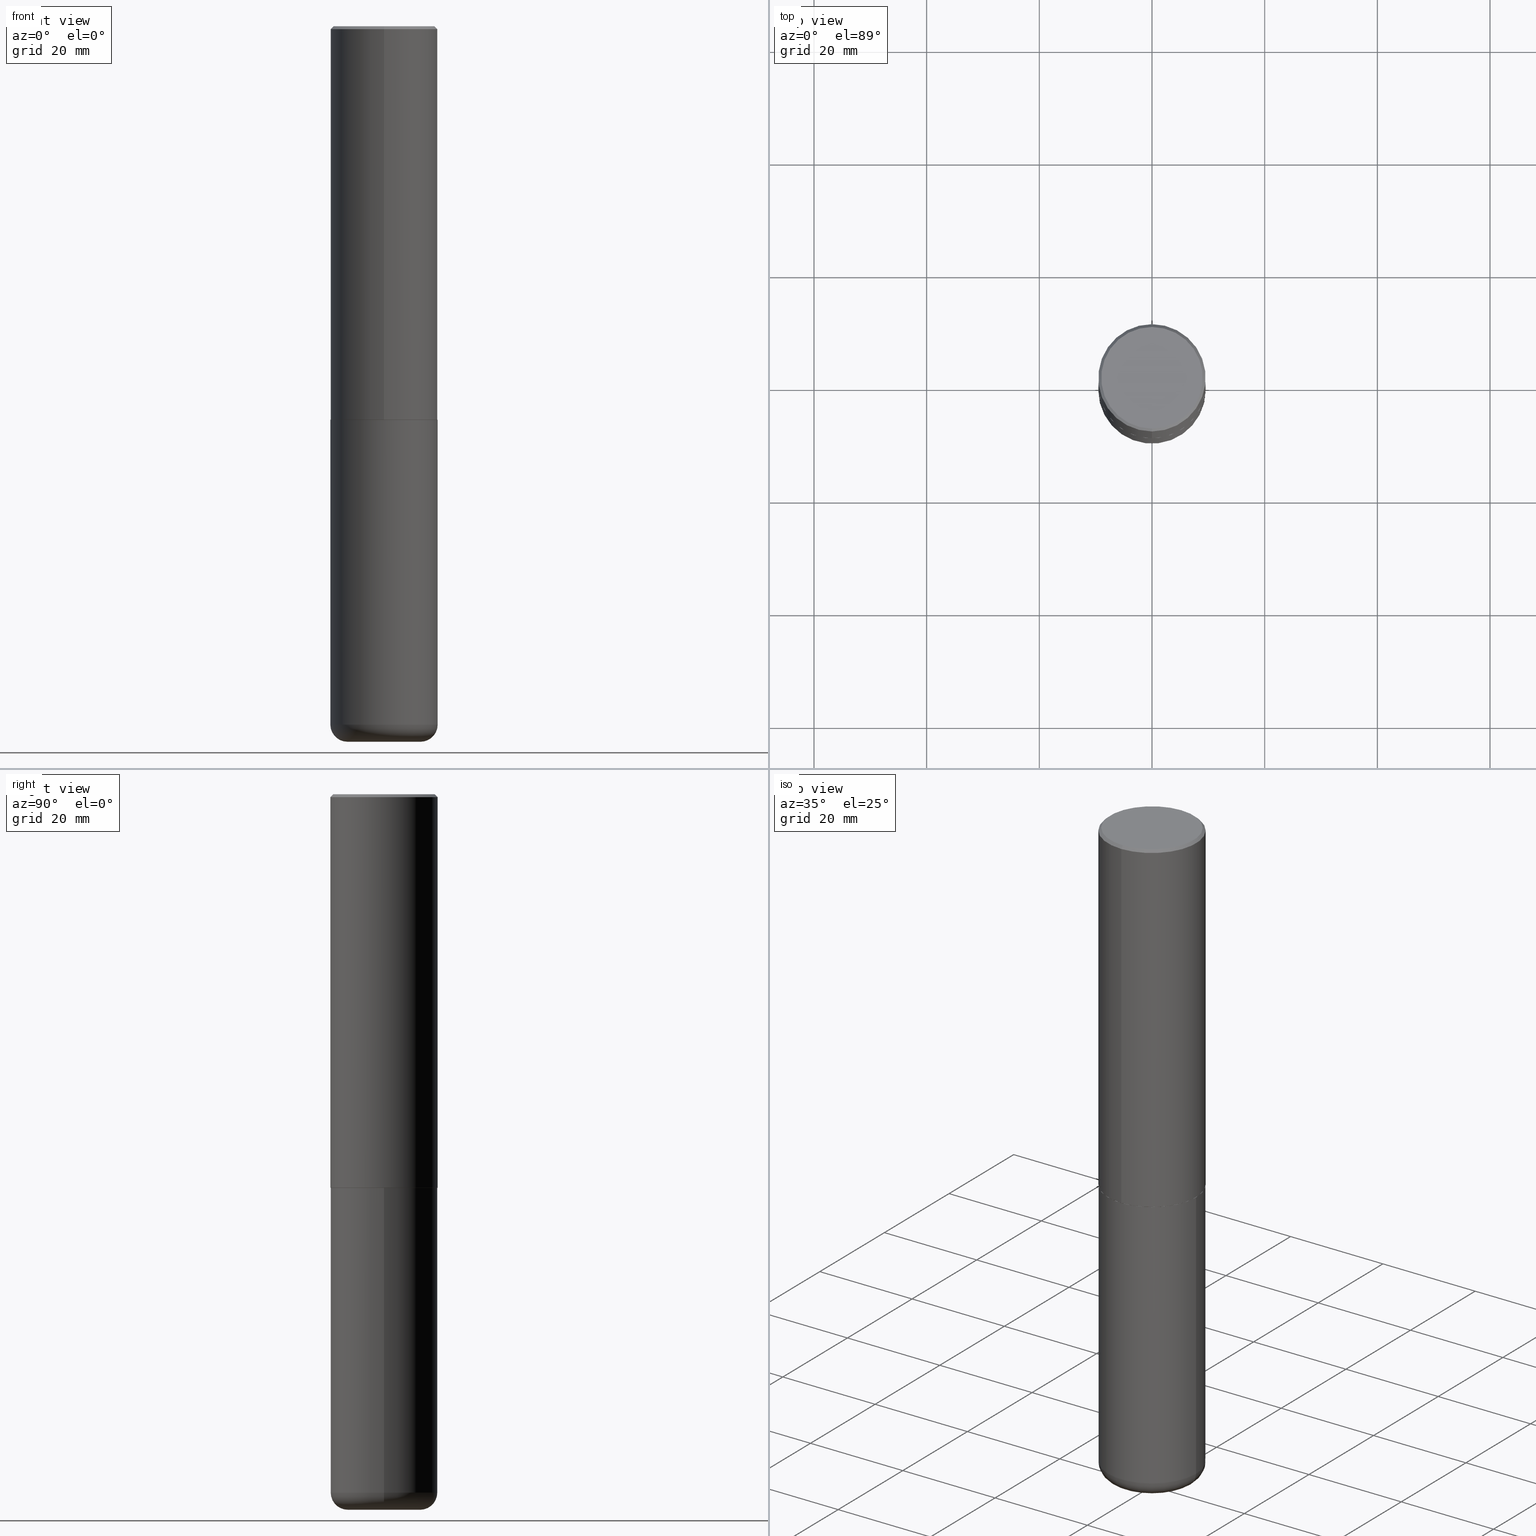
[diagram: canonical four-view strip — front | top / right | iso, engineering-drawing reading convention]
A machine part, canonical four-view strip (front | top / right | iso — engineering-drawing reading convention). The complete STEP part file that produces these views, byte-faithful:
ISO-10303-21;
HEADER;
FILE_DESCRIPTION (( 'STEP AP203' ),
    '1' );
FILE_NAME ('37668.STEP',
    '2024-03-02T07:37:06',
    ( '' ),
    ( '' ),
    'SwSTEP 2.0',
    'SolidWorks 2023',
    '' );
FILE_SCHEMA (( 'CONFIG_CONTROL_DESIGN' ));
ENDSEC;

DATA;
#1 = CARTESIAN_POINT ( 'NONE',  ( -0.3750000000000000555, 2.664535259100376091E-15, -1.844600658845589598E-29 ) ) ;
#2 = EDGE_CURVE ( 'NONE', #78, #285, #305, .T. ) ;
#3 = DIRECTION ( 'NONE',  ( 2.438088387897960049E-29, -3.491481338843145188E-15, -1.000000000000000000 ) ) ;
#4 = DIRECTION ( 'NONE',  ( 1.000000000000000000, -6.982962677686261189E-15, 0.000000000000000000 ) ) ;
#5 = EDGE_CURVE ( 'NONE', #173, #221, #368, .T. ) ;
#6 = ORIENTED_EDGE ( 'NONE', *, *, #258, .F. ) ;
#7 = MECHANICAL_CONTEXT ( 'NONE', #198, 'mechanical' ) ;
#8 = EDGE_LOOP ( 'NONE', ( #370, #292, #10, #160 ) ) ;
#9 = PERSON_AND_ORGANIZATION_ROLE ( 'creator' ) ;
#10 = ORIENTED_EDGE ( 'NONE', *, *, #5, .T. ) ;
#11 = AXIS2_PLACEMENT_3D ( 'NONE', #134, #230, #30 ) ;
#12 = APPROVAL ( #284, 'UNSPECIFIED' ) ;
#13 = ORGANIZATION ( 'UNSPECIFIED', 'UNSPECIFIED', '' ) ;
#14 = APPLICATION_PROTOCOL_DEFINITION ( 'international standard', 'config_control_design', 1994, #198 ) ;
#15 = ORIENTED_EDGE ( 'NONE', *, *, #5, .F. ) ;
#16 = CALENDAR_DATE ( 2024, 2, 3 ) ;
#17 = CARTESIAN_POINT ( 'NONE',  ( 0.3749999999999999445, -1.965703993768690011E-14, -4.880000000000000782 ) ) ;
#18 = FACE_OUTER_BOUND ( 'NONE', #307, .T. ) ;
#19 = EDGE_CURVE ( 'NONE', #238, #78, #337, .T. ) ;
#20 = LOCAL_TIME ( 2, 37, 6.000000000000000000, #396 ) ;
#21 = DIRECTION ( 'NONE',  ( 1.000000000000000000, -6.982962677686265922E-15, 4.876176775795935793E-29 ) ) ;
#22 = DIRECTION ( 'NONE',  ( -6.982962677686265922E-15, -1.000000000000000000, 3.494488891895536035E-15 ) ) ;
#23 = CIRCLE ( 'NONE', #56, 0.1199999999999999539 ) ;
#24 = APPROVAL ( #361, 'UNSPECIFIED' ) ;
#25 = DIRECTION ( 'NONE',  ( -2.445468806185136597E-29, 3.491481338843145583E-15, 1.000000000000000000 ) ) ;
#26 = DIRECTION ( 'NONE',  ( -2.446040391741596606E-29, 3.490662795793665557E-15, 1.000000000000000000 ) ) ;
#27 = ORIENTED_EDGE ( 'NONE', *, *, #19, .F. ) ;
#28 = DIRECTION ( 'NONE',  ( -2.445468806185136597E-29, 3.491481338843145583E-15, 1.000000000000000000 ) ) ;
#29 = CC_DESIGN_PERSON_AND_ORGANIZATION_ASSIGNMENT ( #150, #402, ( #387 ) ) ;
#30 = DIRECTION ( 'NONE',  ( -6.982962677686265922E-15, -1.000000000000000000, 2.913971193241877611E-15 ) ) ;
#31 = DIRECTION ( 'NONE',  ( -2.445468806185136597E-29, 3.491481338843145583E-15, 1.000000000000000000 ) ) ;
#32 = EDGE_CURVE ( 'NONE', #418, #240, #155, .T. ) ;
#33 = DIRECTION ( 'NONE',  ( -2.446040391741596045E-29, 3.490662795793665557E-15, 1.000000000000000000 ) ) ;
#34 = DIRECTION ( 'NONE',  ( 1.000000000000000000, -6.982962677686270655E-15, 0.000000000000000000 ) ) ;
#35 = VECTOR ( 'NONE', #262, 39.37007874015748143 ) ;
#36 =( NAMED_UNIT ( * ) SI_UNIT ( $, .STERADIAN. ) SOLID_ANGLE_UNIT ( ) );
#37 = EDGE_LOOP ( 'NONE', ( #313, #39, #43, #6 ) ) ;
#38 = PERSON_AND_ORGANIZATION ( #60, #13 ) ;
#39 = ORIENTED_EDGE ( 'NONE', *, *, #200, .T. ) ;
#40 = ORIENTED_EDGE ( 'NONE', *, *, #290, .F. ) ;
#41 = VECTOR ( 'NONE', #404, 39.37007874015748143 ) ;
#42 = ORIENTED_EDGE ( 'NONE', *, *, #32, .T. ) ;
#43 = ORIENTED_EDGE ( 'NONE', *, *, #403, .T. ) ;
#44 = DESIGN_CONTEXT ( 'detailed design', #302, 'design' ) ;
#45 = AXIS2_PLACEMENT_3D ( 'NONE', #124, #312, #58 ) ;
#46 = ADVANCED_FACE ( 'NONE', ( #125 ), #345, .F. ) ;
#47 = PERSON_AND_ORGANIZATION ( #60, #13 ) ;
#48 = CIRCLE ( 'NONE', #159, 0.3750000000000000555 ) ;
#49 = EDGE_LOOP ( 'NONE', ( #137, #172, #176, #326 ) ) ;
#50 = MANIFOLD_SOLID_BREP ( 'Body-Move/Copy2[2]', #410 ) ;
#51 = CARTESIAN_POINT ( 'NONE',  ( 0.000000000000000000, 0.000000000000000000, 0.000000000000000000 ) ) ;
#52 = AXIS2_PLACEMENT_3D ( 'NONE', #279, #157, #347 ) ;
#53 = EDGE_CURVE ( 'NONE', #173, #209, #83, .T. ) ;
#54 = DIRECTION ( 'NONE',  ( 2.446040391741596606E-29, -3.490662795793665557E-15, -1.000000000000000000 ) ) ;
#55 = DIRECTION ( 'NONE',  ( 6.982962677686265922E-15, 1.000000000000000000, -3.494488891895536035E-15 ) ) ;
#56 = AXIS2_PLACEMENT_3D ( 'NONE', #289, #358, #226 ) ;
#57 = AXIS2_PLACEMENT_3D ( 'NONE', #388, #237, #299 ) ;
#58 = DIRECTION ( 'NONE',  ( 1.000000000000000000, -6.982962677686266711E-15, 0.000000000000000000 ) ) ;
#59 = PRODUCT_DEFINITION_FORMATION_WITH_SPECIFIED_SOURCE ( 'ANY', '', #295, .NOT_KNOWN. ) ;
#60 = PERSON ( 'UNSPECIFIED', 'UNSPECIFIED', 'UNSPECIFIED', ('UNSPECIFIED'), ('UNSPECIFIED'), ('UNSPECIFIED') ) ;
#61 = DIRECTION ( 'NONE',  ( -6.982962677686266711E-15, -1.000000000000000000, 2.921762560068730595E-15 ) ) ;
#62 = AXIS2_PLACEMENT_3D ( 'NONE', #380, #247, #96 ) ;
#63 = ADVANCED_FACE ( 'NONE', ( #18 ), #408, .T. ) ;
#64 = DIRECTION ( 'NONE',  ( -2.446040391741596606E-29, 3.490662795793665557E-15, 1.000000000000000000 ) ) ;
#65 = VECTOR ( 'NONE', #296, 39.37007874015748143 ) ;
#66 = CARTESIAN_POINT ( 'NONE',  ( -0.3750000000000000555, -1.065546604858622507E-14, -2.750000000000000000 ) ) ;
#67 = LOCAL_TIME ( 2, 37, 6.000000000000000000, #147 ) ;
#68 = ORIENTED_EDGE ( 'NONE', *, *, #280, .F. ) ;
#69 = DIRECTION ( 'NONE',  ( 1.000000000000000000, -6.982962677686266711E-15, 0.000000000000000000 ) ) ;
#70 = DIRECTION ( 'NONE',  ( -1.000000000000000000, 6.982962677686265922E-15, -4.876176775795935793E-29 ) ) ;
#71 = ORIENTED_EDGE ( 'NONE', *, *, #205, .T. ) ;
#72 = CARTESIAN_POINT ( 'NONE',  ( -0.3749999999999999445, -1.437389367445417440E-14, -4.880000000000000782 ) ) ;
#73 = TOROIDAL_SURFACE ( 'NONE', #62, 0.2550000000000000044, 0.1199999999999999123 ) ;
#74 = DIRECTION ( 'NONE',  ( -6.982962677686265922E-15, -1.000000000000000000, 2.913971193241877611E-15 ) ) ;
#75 = CARTESIAN_POINT ( 'NONE',  ( 6.724165036897648492E-29, -9.595832025636787455E-15, -2.749000000000000110 ) ) ;
#76 = AXIS2_PLACEMENT_3D ( 'NONE', #383, #28, #384 ) ;
#77 = APPROVAL_DATE_TIME ( #363, #24 ) ;
#78 = VERTEX_POINT ( 'NONE', #17 ) ;
#79 = LINE ( 'NONE', #241, #65 ) ;
#80 = ADVANCED_FACE ( 'NONE', ( #220 ), #401, .T. ) ;
#81 = ORIENTED_EDGE ( 'NONE', *, *, #310, .T. ) ;
#82 = ORIENTED_EDGE ( 'NONE', *, *, #310, .F. ) ;
#83 = CIRCLE ( 'NONE', #203, 0.3739999999999999991 ) ;
#84 =( NAMED_UNIT ( * ) PLANE_ANGLE_UNIT ( ) SI_UNIT ( $, .RADIAN. ) );
#85 = CARTESIAN_POINT ( 'NONE',  ( -2.611628041454596160E-15, -0.3740000000000096581, -2.749999999999998668 ) ) ;
#86 = SECURITY_CLASSIFICATION_LEVEL ( 'unclassified' ) ;
#87 = AXIS2_PLACEMENT_3D ( 'NONE', #51, #294, #228 ) ;
#88 = FACE_OUTER_BOUND ( 'NONE', #37, .T. ) ;
#89 = ADVANCED_FACE ( 'NONE', ( #405 ), #73, .T. ) ;
#90 = CARTESIAN_POINT ( 'NONE',  ( -2.572686749164323547E-15, -0.3750000000000001110, -0.01999999999999877570 ) ) ;
#91 = ORIENTED_EDGE ( 'NONE', *, *, #280, .T. ) ;
#92 = PERSON_AND_ORGANIZATION ( #60, #13 ) ;
#93 = DIRECTION ( 'NONE',  ( -2.445468806185136597E-29, 3.491481338843145583E-15, 1.000000000000000000 ) ) ;
#94 = CIRCLE ( 'NONE', #353, 0.2550000000000000044 ) ;
#95 = VERTEX_POINT ( 'NONE', #152 ) ;
#96 = DIRECTION ( 'NONE',  ( 1.000000000000000000, -6.982962677686263555E-15, 4.883557194083111219E-29 ) ) ;
#97 = EDGE_CURVE ( 'NONE', #95, #418, #374, .T. ) ;
#98 = CLOSED_SHELL ( 'NONE', ( #63, #89, #264, #188, #102, #390 ) ) ;
#99 = CARTESIAN_POINT ( 'NONE',  ( 1.222734403092568523E-28, -1.745740669421572989E-14, -5.000000000000000000 ) ) ;
#100 = CONICAL_SURFACE ( 'NONE', #256, 0.3750000000000000555, 0.7853981633974465026 ) ;
#101 = DIRECTION ( 'NONE',  ( -6.982962677686266711E-15, -1.000000000000000000, 2.921762560068730595E-15 ) ) ;
#102 = ADVANCED_FACE ( 'NONE', ( #217 ), #130, .T. ) ;
#103 = CARTESIAN_POINT ( 'NONE',  ( -1.141397163745304909E-45, 1.628849886601155835E-31, 4.666305460853910467E-17 ) ) ;
#104 = DIRECTION ( 'NONE',  ( -2.446040391741596606E-29, 3.490662795793665557E-15, 1.000000000000000000 ) ) ;
#105 = AXIS2_PLACEMENT_3D ( 'NONE', #245, #331, #34 ) ;
#106 = FACE_OUTER_BOUND ( 'NONE', #49, .T. ) ;
#107 = AXIS2_PLACEMENT_3D ( 'NONE', #132, #3, #70 ) ;
#108 = PERSON_AND_ORGANIZATION ( #60, #13 ) ;
#109 = PRODUCT_RELATED_PRODUCT_CATEGORY ( 'detail', '', ( #295 ) ) ;
#110 = EDGE_LOOP ( 'NONE', ( #277, #145, #298, #27 ) ) ;
#111 = ADVANCED_FACE ( 'NONE', ( #283 ), #100, .T. ) ;
#112 = CIRCLE ( 'NONE', #151, 0.3750000000000003886 ) ;
#113 = DIRECTION ( 'NONE',  ( 2.438088387897960049E-29, -3.491481338843145188E-15, -1.000000000000000000 ) ) ;
#114 = AXIS2_PLACEMENT_3D ( 'NONE', #276, #33, #138 ) ;
#115 = ORIENTED_EDGE ( 'NONE', *, *, #2, .F. ) ;
#116 = PLANE ( 'NONE',  #114 ) ;
#117 = DIRECTION ( 'NONE',  ( -2.445468806185136877E-29, 3.491481338843145188E-15, 1.000000000000000000 ) ) ;
#118 = PERSON_AND_ORGANIZATION ( #60, #13 ) ;
#119 = EDGE_LOOP ( 'NONE', ( #398, #340, #91, #270 ) ) ;
#120 = EDGE_CURVE ( 'NONE', #95, #272, #341, .T. ) ;
#121 = DIRECTION ( 'NONE',  ( -2.445468806185136597E-29, 3.491481338843145583E-15, 1.000000000000000000 ) ) ;
#122 = APPROVAL_DATE_TIME ( #183, #12 ) ;
#123 = DIRECTION ( 'NONE',  ( -2.446040391741596606E-29, 3.490662795793665557E-15, 1.000000000000000000 ) ) ;
#124 = CARTESIAN_POINT ( 'NONE',  ( 6.725039217009124520E-29, -9.601573681818649859E-15, -2.750000000000000000 ) ) ;
#125 = FACE_OUTER_BOUND ( 'NONE', #364, .T. ) ;
#126 = AXIS2_PLACEMENT_3D ( 'NONE', #163, #225, #354 ) ;
#127 = CYLINDRICAL_SURFACE ( 'NONE', #357, 0.3750000000000000555 ) ;
#128 = VECTOR ( 'NONE', #223, 39.37007874015748143 ) ;
#129 = EDGE_CURVE ( 'NONE', #209, #392, #351, .T. ) ;
#130 = TOROIDAL_SURFACE ( 'NONE', #385, 0.2550000000000000044, 0.1199999999999999123 ) ;
#131 = CARTESIAN_POINT ( 'NONE',  ( 0.2550000000000000044, -1.923806217702572663E-14, -5.000000000000000000 ) ) ;
#132 = CARTESIAN_POINT ( 'NONE',  ( 6.725039217009124520E-29, -9.601573681818649859E-15, -2.750000000000000000 ) ) ;
#133 = CARTESIAN_POINT ( 'NONE',  ( 2.548781377355487113E-15, 0.3549999999999999822, -1.192522237898212341E-15 ) ) ;
#134 = CARTESIAN_POINT ( 'NONE',  ( 6.724165036897648492E-29, -9.595832025636787455E-15, -2.749000000000000110 ) ) ;
#135 = APPROVAL ( #309, 'UNSPECIFIED' ) ;
#136 = CIRCLE ( 'NONE', #246, 0.3750000000000000555 ) ;
#137 = ORIENTED_EDGE ( 'NONE', *, *, #275, .F. ) ;
#138 = DIRECTION ( 'NONE',  ( -6.982962677686265922E-15, -1.000000000000000000, 3.490662795793665557E-15 ) ) ;
#139 = ORIENTED_EDGE ( 'NONE', *, *, #53, .F. ) ;
#140 = DIRECTION ( 'NONE',  ( 1.000000000000000000, 0.000000000000000000, 0.000000000000000000 ) ) ;
#141 = AXIS2_PLACEMENT_3D ( 'NONE', #389, #25, #4 ) ;
#142 = CARTESIAN_POINT ( 'NONE',  ( 0.000000000000000000, 0.000000000000000000, 0.000000000000000000 ) ) ;
#143 = ORIENTED_EDGE ( 'NONE', *, *, #53, .T. ) ;
#144 = DATE_TIME_ROLE ( 'classification_date' ) ;
#145 = ORIENTED_EDGE ( 'NONE', *, *, #181, .T. ) ;
#146 = AXIS2_PLACEMENT_3D ( 'NONE', #311, #282, #251 ) ;
#147 = COORDINATED_UNIVERSAL_TIME_OFFSET ( 5, 0, .BEHIND. ) ;
#148 = ADVANCED_FACE ( 'NONE', ( #411 ), #260, .T. ) ;
#149 = CONICAL_SURFACE ( 'NONE', #314, 0.3739999999999999991, 0.7853981633977213939 ) ;
#150 = PERSON_AND_ORGANIZATION ( #60, #13 ) ;
#151 = AXIS2_PLACEMENT_3D ( 'NONE', #75, #394, #74 ) ;
#152 = CARTESIAN_POINT ( 'NONE',  ( -2.504081769186608216E-15, -0.3549999999999999822, 1.285848347115290366E-15 ) ) ;
#153 = APPROVAL_PERSON_ORGANIZATION ( #47, #24, #212 ) ;
#154 = DIRECTION ( 'NONE',  ( 5.024295867789434219E-15, 0.7071067811867430830, 0.7071067811863519514 ) ) ;
#155 = CIRCLE ( 'NONE', #330, 0.3750000000000000555 ) ;
#156 = DATE_TIME_ROLE ( 'creation_date' ) ;
#157 = DIRECTION ( 'NONE',  ( -2.446040391741596606E-29, 3.490662795793665557E-15, 1.000000000000000000 ) ) ;
#158 = DIRECTION ( 'NONE',  ( -2.446040391741596606E-29, 3.490662795793665557E-15, 1.000000000000000000 ) ) ;
#159 = AXIS2_PLACEMENT_3D ( 'NONE', #193, #64, #194 ) ;
#160 = ORIENTED_EDGE ( 'NONE', *, *, #200, .F. ) ;
#161 = LOCAL_TIME ( 2, 37, 6.000000000000000000, #191 ) ;
#162 = PLANE ( 'NONE',  #107 ) ;
#163 = CARTESIAN_POINT ( 'NONE',  ( 1.222734403092568523E-28, -1.745740669421572989E-14, -5.000000000000000000 ) ) ;
#164 = EDGE_LOOP ( 'NONE', ( #170, #81, #301, #174 ) ) ;
#165 = CARTESIAN_POINT ( 'NONE',  ( -2.618611004132284935E-15, -0.3750000000000099920, -2.748999999999999222 ) ) ;
#166 = CARTESIAN_POINT ( 'NONE',  ( 2.660982545421643429E-15, 0.3739999999999903957, -2.750000000000000888 ) ) ;
#167 = EDGE_CURVE ( 'NONE', #214, #285, #381, .T. ) ;
#168 = DIRECTION ( 'NONE',  ( -6.982962677686265922E-15, -1.000000000000000000, 3.490662795793665557E-15 ) ) ;
#169 = CARTESIAN_POINT ( 'NONE',  ( 2.664535259100411196E-15, 0.3749999999999907296, -2.749000000000000998 ) ) ;
#170 = ORIENTED_EDGE ( 'NONE', *, *, #181, .F. ) ;
#171 = ADVANCED_FACE ( 'NONE', ( #88 ), #216, .T. ) ;
#172 = ORIENTED_EDGE ( 'NONE', *, *, #192, .T. ) ;
#173 = VERTEX_POINT ( 'NONE', #199 ) ;
#174 = ORIENTED_EDGE ( 'NONE', *, *, #192, .F. ) ;
#175 = FACE_OUTER_BOUND ( 'NONE', #278, .T. ) ;
#176 = ORIENTED_EDGE ( 'NONE', *, *, #2, .T. ) ;
#177 = CIRCLE ( 'NONE', #231, 0.3739999999999999991 ) ;
#178 = VECTOR ( 'NONE', #269, 39.37007874015748143 ) ;
#179 = CARTESIAN_POINT ( 'NONE',  ( -0.2550000000000000044, -1.500970819624082478E-14, -5.000000000000000000 ) ) ;
#180 = ORIENTED_EDGE ( 'NONE', *, *, #393, .T. ) ;
#181 = EDGE_CURVE ( 'NONE', #366, #213, #23, .T. ) ;
#182 = CARTESIAN_POINT ( 'NONE',  ( 0.000000000000000000, 0.000000000000000000, 0.000000000000000000 ) ) ;
#183 = DATE_AND_TIME ( #375, #161 ) ;
#184 = DIRECTION ( 'NONE',  ( 2.446040391741596606E-29, -3.490662795793665557E-15, -1.000000000000000000 ) ) ;
#185 = APPROVAL_ROLE ( '' ) ;
#186 = CARTESIAN_POINT ( 'NONE',  ( -1.141397163745304909E-45, 1.628849886601155835E-31, 4.666305460853910467E-17 ) ) ;
#187 =( GEOMETRIC_REPRESENTATION_CONTEXT ( 3 ) GLOBAL_UNCERTAINTY_ASSIGNED_CONTEXT ( ( #268 ) ) GLOBAL_UNIT_ASSIGNED_CONTEXT ( ( #339, #84, #36 ) ) REPRESENTATION_CONTEXT ( 'NONE', 'WORKASPACE' ) );
#188 = ADVANCED_FACE ( 'NONE', ( #106 ), #127, .T. ) ;
#189 = DIRECTION ( 'NONE',  ( -6.982962677686265922E-15, -1.000000000000000000, 3.490662795793665557E-15 ) ) ;
#190 = ORIENTED_EDGE ( 'NONE', *, *, #120, .F. ) ;
#191 = COORDINATED_UNIVERSAL_TIME_OFFSET ( 5, 0, .BEHIND. ) ;
#192 = EDGE_CURVE ( 'NONE', #213, #78, #397, .T. ) ;
#193 = CARTESIAN_POINT ( 'NONE',  ( 4.892080783483214581E-31, -6.981325591587361238E-17, -0.02000000000000008715 ) ) ;
#194 = DIRECTION ( 'NONE',  ( -6.982962677686265922E-15, -1.000000000000000000, 3.494488891895536035E-15 ) ) ;
#195 = DIRECTION ( 'NONE',  ( 1.000000000000000000, -6.982962677686267499E-15, 0.000000000000000000 ) ) ;
#196 = ORIENTED_EDGE ( 'NONE', *, *, #362, .F. ) ;
#197 = ORIENTED_EDGE ( 'NONE', *, *, #97, .T. ) ;
#198 = APPLICATION_CONTEXT ( 'configuration controlled 3d designs of mechanical parts and assemblies' ) ;
#199 = CARTESIAN_POINT ( 'NONE',  ( -2.611628041454596160E-15, -0.3740000000000096581, -2.749999999999998668 ) ) ;
#200 = EDGE_CURVE ( 'NONE', #392, #221, #219, .T. ) ;
#201 = CARTESIAN_POINT ( 'NONE',  ( 0.000000000000000000, 0.000000000000000000, 0.000000000000000000 ) ) ;
#202 = LENGTH_MEASURE_WITH_UNIT ( LENGTH_MEASURE( 0.02539999999999999897 ), #399 );
#203 = AXIS2_PLACEMENT_3D ( 'NONE', #250, #123, #61 ) ;
#204 = ORIENTED_EDGE ( 'NONE', *, *, #242, .F. ) ;
#205 = EDGE_CURVE ( 'NONE', #78, #213, #273, .T. ) ;
#206 = DIRECTION ( 'NONE',  ( -1.000000000000000000, 6.982962677686265922E-15, -4.876176775795935793E-29 ) ) ;
#207 = ORIENTED_EDGE ( 'NONE', *, *, #120, .T. ) ;
#208 = CARTESIAN_POINT ( 'NONE',  ( -2.572686749164323547E-15, -0.3750000000000001110, -0.01999999999999877570 ) ) ;
#209 = VERTEX_POINT ( 'NONE', #166 ) ;
#210 = DIMENSIONAL_EXPONENTS ( 1.000000000000000000, 0.000000000000000000, 0.000000000000000000, 0.000000000000000000, 0.000000000000000000, 0.000000000000000000, 0.000000000000000000 ) ;
#211 = ORIENTED_EDGE ( 'NONE', *, *, #362, .T. ) ;
#212 = APPROVAL_ROLE ( '' ) ;
#213 = VERTEX_POINT ( 'NONE', #72 ) ;
#214 = VERTEX_POINT ( 'NONE', #66 ) ;
#215 = PERSON_AND_ORGANIZATION ( #60, #13 ) ;
#216 = CYLINDRICAL_SURFACE ( 'NONE', #87, 0.3750000000000002220 ) ;
#217 = FACE_OUTER_BOUND ( 'NONE', #164, .T. ) ;
#218 = CC_DESIGN_PERSON_AND_ORGANIZATION_ASSIGNMENT ( #38, #9, ( #329 ) ) ;
#219 = CIRCLE ( 'NONE', #11, 0.3750000000000003886 ) ;
#220 = FACE_OUTER_BOUND ( 'NONE', #8, .T. ) ;
#221 = VERTEX_POINT ( 'NONE', #165 ) ;
#222 = CC_DESIGN_APPROVAL ( #135, ( #387 ) ) ;
#223 = DIRECTION ( 'NONE',  ( -4.851104656540954809E-15, -0.7071067811865486830, -0.7071067811865463515 ) ) ;
#224 = FACE_OUTER_BOUND ( 'NONE', #367, .T. ) ;
#225 = DIRECTION ( 'NONE',  ( -2.445468806185136597E-29, 3.491481338843145583E-15, 1.000000000000000000 ) ) ;
#226 = DIRECTION ( 'NONE',  ( -1.000000000000000000, 7.105427357600993970E-15, 0.000000000000000000 ) ) ;
#227 = VECTOR ( 'NONE', #117, 39.37007874015748143 ) ;
#228 = DIRECTION ( 'NONE',  ( -6.982962677686266711E-15, -1.000000000000000000, 3.490662795793665951E-15 ) ) ;
#229 = ORIENTED_EDGE ( 'NONE', *, *, #275, .T. ) ;
#230 = DIRECTION ( 'NONE',  ( -2.446040391741596606E-29, 3.490662795793665557E-15, 1.000000000000000000 ) ) ;
#231 = AXIS2_PLACEMENT_3D ( 'NONE', #352, #104, #257 ) ;
#232 = AXIS2_PLACEMENT_3D ( 'NONE', #252, #184, #319 ) ;
#233 = EDGE_CURVE ( 'NONE', #238, #366, #94, .T. ) ;
#234 = EDGE_LOOP ( 'NONE', ( #338, #82 ) ) ;
#235 = PERSON_AND_ORGANIZATION_ROLE ( 'design_owner' ) ;
#236 = ORIENTED_EDGE ( 'NONE', *, *, #286, .T. ) ;
#237 = DIRECTION ( 'NONE',  ( -2.446040391741596606E-29, 3.490662795793665557E-15, 1.000000000000000000 ) ) ;
#238 = VERTEX_POINT ( 'NONE', #131 ) ;
#239 = ADVANCED_BREP_SHAPE_REPRESENTATION ( '37668', ( #332, #50, #415 ), #187 ) ;
#240 = VERTEX_POINT ( 'NONE', #356 ) ;
#241 = CARTESIAN_POINT ( 'NONE',  ( 2.664535259100376880E-15, 0.3750000000000002220, -1.308998548422625521E-15 ) ) ;
#242 = EDGE_CURVE ( 'NONE', #209, #173, #177, .T. ) ;
#243 = EDGE_LOOP ( 'NONE', ( #190, #197, #42, #68 ) ) ;
#244 = PERSON_AND_ORGANIZATION ( #60, #13 ) ;
#245 = CARTESIAN_POINT ( 'NONE',  ( 0.2550000000000000044, -1.881908441636454685E-14, -4.880000000000000782 ) ) ;
#246 = AXIS2_PLACEMENT_3D ( 'NONE', #355, #31, #69 ) ;
#247 = DIRECTION ( 'NONE',  ( -2.445468806185136597E-29, 3.491481338843145583E-15, 1.000000000000000000 ) ) ;
#248 = APPROVAL_PERSON_ORGANIZATION ( #118, #12, #412 ) ;
#249 = DATE_AND_TIME ( #16, #308 ) ;
#250 = CARTESIAN_POINT ( 'NONE',  ( 6.726611077289389265E-29, -9.599322688432580971E-15, -2.750000000000000000 ) ) ;
#251 = DIRECTION ( 'NONE',  ( 6.982962677686265922E-15, 1.000000000000000000, -3.490662795793665557E-15 ) ) ;
#252 = CARTESIAN_POINT ( 'NONE',  ( 4.892080783483214581E-31, -6.981325591587361238E-17, -0.02000000000000008715 ) ) ;
#253 = CC_DESIGN_PERSON_AND_ORGANIZATION_ASSIGNMENT ( #244, #350, ( #59 ) ) ;
#254 = AXIS2_PLACEMENT_3D ( 'NONE', #182, #121, #21 ) ;
#255 = DIRECTION ( 'NONE',  ( -2.446040391741596606E-29, 3.490662795793665557E-15, 1.000000000000000000 ) ) ;
#256 = AXIS2_PLACEMENT_3D ( 'NONE', #287, #54, #55 ) ;
#257 = DIRECTION ( 'NONE',  ( -6.982962677686266711E-15, -1.000000000000000000, 2.921762560068730595E-15 ) ) ;
#258 = EDGE_CURVE ( 'NONE', #240, #418, #48, .T. ) ;
#259 = APPROVAL_PERSON_ORGANIZATION ( #92, #135, #185 ) ;
#260 = CONICAL_SURFACE ( 'NONE', #232, 0.3750000000000000555, 0.7853981633974465026 ) ;
#261 = FACE_OUTER_BOUND ( 'NONE', #406, .T. ) ;
#262 = DIRECTION ( 'NONE',  ( 4.937700262164538576E-15, 0.7071067811865437980, -0.7071067811865512365 ) ) ;
#263 = APPLICATION_PROTOCOL_DEFINITION ( 'international standard', 'config_control_design', 1994, #302 ) ;
#264 = ADVANCED_FACE ( 'NONE', ( #224 ), #162, .F. ) ;
#265 = DIRECTION ( 'NONE',  ( 0.000000000000000000, 0.000000000000000000, 1.000000000000000000 ) ) ;
#266 = LOCAL_TIME ( 2, 37, 6.000000000000000000, #271 ) ;
#267 = ORIENTED_EDGE ( 'NONE', *, *, #167, .T. ) ;
#268 = UNCERTAINTY_MEASURE_WITH_UNIT (LENGTH_MEASURE( 1.000000000000000082E-05 ), #339, 'distance_accuracy_value', 'NONE');
#269 = DIRECTION ( 'NONE',  ( -2.446040391741596606E-29, 3.490662795793665557E-15, 1.000000000000000000 ) ) ;
#270 = ORIENTED_EDGE ( 'NONE', *, *, #258, .T. ) ;
#271 = COORDINATED_UNIVERSAL_TIME_OFFSET ( 5, 0, .BEHIND. ) ;
#272 = VERTEX_POINT ( 'NONE', #133 ) ;
#273 = CIRCLE ( 'NONE', #76, 0.3750000000000000555 ) ;
#274 = AXIS2_PLACEMENT_3D ( 'NONE', #186, #315, #189 ) ;
#275 = EDGE_CURVE ( 'NONE', #213, #214, #291, .T. ) ;
#276 = CARTESIAN_POINT ( 'NONE',  ( 6.726611077289389265E-29, -9.599322688432580971E-15, -2.750000000000000000 ) ) ;
#277 = ORIENTED_EDGE ( 'NONE', *, *, #233, .T. ) ;
#278 = EDGE_LOOP ( 'NONE', ( #139, #204 ) ) ;
#279 = CARTESIAN_POINT ( 'NONE',  ( 6.726611077289389265E-29, -9.599322688432580971E-15, -2.750000000000000000 ) ) ;
#280 = EDGE_CURVE ( 'NONE', #272, #240, #293, .T. ) ;
#281 = DATE_AND_TIME ( #379, #67 ) ;
#282 = DIRECTION ( 'NONE',  ( 2.446040391741596045E-29, -3.490662795793665557E-15, -1.000000000000000000 ) ) ;
#283 = FACE_OUTER_BOUND ( 'NONE', #119, .T. ) ;
#284 = APPROVAL_STATUS ( 'not_yet_approved' ) ;
#285 = VERTEX_POINT ( 'NONE', #328 ) ;
#286 = EDGE_CURVE ( 'NONE', #272, #95, #320, .T. ) ;
#287 = CARTESIAN_POINT ( 'NONE',  ( 4.892080783483214581E-31, -6.981325591587361238E-17, -0.02000000000000008715 ) ) ;
#288 = CARTESIAN_POINT ( 'NONE',  ( 2.618611004132350411E-15, 0.3749999999999999445, -0.02000000000000139513 ) ) ;
#289 = CARTESIAN_POINT ( 'NONE',  ( -0.2550000000000000044, -1.522654495736629538E-14, -4.880000000000000782 ) ) ;
#290 = EDGE_CURVE ( 'NONE', #285, #214, #136, .T. ) ;
#291 = LINE ( 'NONE', #1, #342 ) ;
#292 = ORIENTED_EDGE ( 'NONE', *, *, #242, .T. ) ;
#293 = LINE ( 'NONE', #288, #35 ) ;
#294 = DIRECTION ( 'NONE',  ( -2.446040391741596606E-29, 3.490662795793665557E-15, 1.000000000000000000 ) ) ;
#295 = PRODUCT ( '37668', '37668', '', ( #7 ) ) ;
#296 = DIRECTION ( 'NONE',  ( -2.446040391741596606E-29, 3.490662795793665557E-15, 1.000000000000000000 ) ) ;
#297 = ADVANCED_FACE ( 'NONE', ( #261 ), #149, .T. ) ;
#298 = ORIENTED_EDGE ( 'NONE', *, *, #205, .F. ) ;
#299 = DIRECTION ( 'NONE',  ( -6.982962677686266711E-15, -1.000000000000000000, 3.490662795793665951E-15 ) ) ;
#300 = CC_DESIGN_APPROVAL ( #24, ( #329 ) ) ;
#301 = ORIENTED_EDGE ( 'NONE', *, *, #19, .T. ) ;
#302 = APPLICATION_CONTEXT ( 'configuration controlled 3d designs of mechanical parts and assemblies' ) ;
#303 = CARTESIAN_POINT ( 'NONE',  ( -2.618611004132351594E-15, -0.3750000000000002220, 1.308998548422625521E-15 ) ) ;
#304 = PRODUCT_DEFINITION_SHAPE ( 'NONE', 'NONE',  #329 ) ;
#305 = LINE ( 'NONE', #400, #227 ) ;
#306 = CARTESIAN_POINT ( 'NONE',  ( 1.222734403092568523E-28, -1.745740669421572989E-14, -5.000000000000000000 ) ) ;
#307 = EDGE_LOOP ( 'NONE', ( #71, #229, #40, #115 ) ) ;
#308 = LOCAL_TIME ( 2, 37, 6.000000000000000000, #318 ) ;
#309 = APPROVAL_STATUS ( 'not_yet_approved' ) ;
#310 = EDGE_CURVE ( 'NONE', #366, #238, #333, .T. ) ;
#311 = CARTESIAN_POINT ( 'NONE',  ( 2.478951750578624209E-15, 0.3549999999999999822, -1.215853765202481601E-15 ) ) ;
#312 = DIRECTION ( 'NONE',  ( -2.445468806185136597E-29, 3.491481338843145583E-15, 1.000000000000000000 ) ) ;
#313 = ORIENTED_EDGE ( 'NONE', *, *, #393, .F. ) ;
#314 = AXIS2_PLACEMENT_3D ( 'NONE', #416, #255, #101 ) ;
#315 = DIRECTION ( 'NONE',  ( -2.446040391741596606E-29, 3.490662795793665557E-15, 1.000000000000000000 ) ) ;
#316 = CC_DESIGN_SECURITY_CLASSIFICATION ( #387, ( #59 ) ) ;
#317 = ADVANCED_FACE ( 'NONE', ( #323 ), #325, .T. ) ;
#318 = COORDINATED_UNIVERSAL_TIME_OFFSET ( 5, 0, .BEHIND. ) ;
#319 = DIRECTION ( 'NONE',  ( 6.982962677686265922E-15, 1.000000000000000000, -3.494488891895536035E-15 ) ) ;
#320 = CIRCLE ( 'NONE', #371, 0.3549999999999999822 ) ;
#321 = AXIS2_PLACEMENT_3D ( 'NONE', #306, #113, #206 ) ;
#322 = DIRECTION ( 'NONE',  ( 1.000000000000000000, -6.982962677686265922E-15, 4.876176775795935793E-29 ) ) ;
#323 = FACE_OUTER_BOUND ( 'NONE', #336, .T. ) ;
#324 = CC_DESIGN_PERSON_AND_ORGANIZATION_ASSIGNMENT ( #108, #235, ( #295 ) ) ;
#325 = CYLINDRICAL_SURFACE ( 'NONE', #57, 0.3750000000000002220 ) ;
#326 = ORIENTED_EDGE ( 'NONE', *, *, #167, .F. ) ;
#327 = DIRECTION ( 'NONE',  ( -2.445468806185136597E-29, 3.491481338843145583E-15, 1.000000000000000000 ) ) ;
#328 = CARTESIAN_POINT ( 'NONE',  ( 0.3750000000000000555, -1.222018468595100145E-14, -2.750000000000000000 ) ) ;
#329 = PRODUCT_DEFINITION ( 'UNKNOWN', '', #59, #44 ) ;
#330 = AXIS2_PLACEMENT_3D ( 'NONE', #413, #158, #22 ) ;
#331 = DIRECTION ( 'NONE',  ( -6.982962677686266711E-15, -1.000000000000000000, 3.491481338843145583E-15 ) ) ;
#332 = MANIFOLD_SOLID_BREP ( 'Body-Move/Copy2[1]', #98 ) ;
#333 = CIRCLE ( 'NONE', #126, 0.2550000000000000044 ) ;
#334 = ORIENTED_EDGE ( 'NONE', *, *, #403, .F. ) ;
#335 = PLANE ( 'NONE',  #321 ) ;
#336 = EDGE_LOOP ( 'NONE', ( #211, #180, #395, #334 ) ) ;
#337 = CIRCLE ( 'NONE', #105, 0.1199999999999999539 ) ;
#338 = ORIENTED_EDGE ( 'NONE', *, *, #233, .F. ) ;
#339 =( CONVERSION_BASED_UNIT ( 'INCH', #202 ) LENGTH_UNIT ( ) NAMED_UNIT ( #210 ) );
#340 = ORIENTED_EDGE ( 'NONE', *, *, #286, .F. ) ;
#341 = CIRCLE ( 'NONE', #274, 0.3549999999999999822 ) ;
#342 = VECTOR ( 'NONE', #386, 39.37007874015748143 ) ;
#343 = CC_DESIGN_APPROVAL ( #12, ( #59 ) ) ;
#344 = CARTESIAN_POINT ( 'NONE',  ( 1.193388777418346668E-28, -1.703842893355455010E-14, -4.880000000000000782 ) ) ;
#345 = PLANE ( 'NONE',  #146 ) ;
#346 = DATE_AND_TIME ( #407, #20 ) ;
#347 = DIRECTION ( 'NONE',  ( -6.982962677686266711E-15, -1.000000000000000000, 2.921762560068730595E-15 ) ) ;
#348 = CC_DESIGN_DATE_AND_TIME_ASSIGNMENT ( #346, #156, ( #329 ) ) ;
#349 = ORIENTED_EDGE ( 'NONE', *, *, #290, .T. ) ;
#350 = PERSON_AND_ORGANIZATION_ROLE ( 'creator' ) ;
#351 = LINE ( 'NONE', #414, #378 ) ;
#352 = CARTESIAN_POINT ( 'NONE',  ( 6.726611077289389265E-29, -9.599322688432580971E-15, -2.750000000000000000 ) ) ;
#353 = AXIS2_PLACEMENT_3D ( 'NONE', #99, #417, #195 ) ;
#354 = DIRECTION ( 'NONE',  ( 1.000000000000000000, -6.982962677686267499E-15, 0.000000000000000000 ) ) ;
#355 = CARTESIAN_POINT ( 'NONE',  ( 6.725039217009124520E-29, -9.601573681818649859E-15, -2.750000000000000000 ) ) ;
#356 = CARTESIAN_POINT ( 'NONE',  ( 2.618611004132350411E-15, 0.3749999999999999445, -0.02000000000000139513 ) ) ;
#357 = AXIS2_PLACEMENT_3D ( 'NONE', #201, #327, #322 ) ;
#358 = DIRECTION ( 'NONE',  ( 7.105427357601001859E-15, 1.000000000000000000, -3.491481338843145583E-15 ) ) ;
#359 = CC_DESIGN_PERSON_AND_ORGANIZATION_ASSIGNMENT ( #215, #369, ( #59 ) ) ;
#360 = LINE ( 'NONE', #303, #178 ) ;
#361 = APPROVAL_STATUS ( 'not_yet_approved' ) ;
#362 = EDGE_CURVE ( 'NONE', #221, #392, #112, .T. ) ;
#363 = DATE_AND_TIME ( #391, #266 ) ;
#364 = EDGE_LOOP ( 'NONE', ( #236, #207 ) ) ;
#365 = FACE_OUTER_BOUND ( 'NONE', #234, .T. ) ;
#366 = VERTEX_POINT ( 'NONE', #179 ) ;
#367 = EDGE_LOOP ( 'NONE', ( #349, #267 ) ) ;
#368 = LINE ( 'NONE', #85, #41 ) ;
#369 = PERSON_AND_ORGANIZATION_ROLE ( 'design_supplier' ) ;
#370 = ORIENTED_EDGE ( 'NONE', *, *, #129, .F. ) ;
#371 = AXIS2_PLACEMENT_3D ( 'NONE', #103, #26, #168 ) ;
#372 = CC_DESIGN_DATE_AND_TIME_ASSIGNMENT ( #249, #144, ( #387 ) ) ;
#373 = SHAPE_DEFINITION_REPRESENTATION ( #304, #239 ) ;
#374 = LINE ( 'NONE', #90, #128 ) ;
#375 = CALENDAR_DATE ( 2024, 2, 3 ) ;
#376 = DIRECTION ( 'NONE',  ( 1.000000000000000000, -6.982962677686263555E-15, 4.883557194083111219E-29 ) ) ;
#377 = APPROVAL_DATE_TIME ( #281, #135 ) ;
#378 = VECTOR ( 'NONE', #154, 39.37007874015748143 ) ;
#379 = CALENDAR_DATE ( 2024, 2, 3 ) ;
#380 = CARTESIAN_POINT ( 'NONE',  ( 1.193388777418346668E-28, -1.703842893355455010E-14, -4.880000000000000782 ) ) ;
#381 = CIRCLE ( 'NONE', #45, 0.3750000000000000555 ) ;
#382 = ORIENTED_EDGE ( 'NONE', *, *, #129, .T. ) ;
#383 = CARTESIAN_POINT ( 'NONE',  ( 1.193388777418346668E-28, -1.703842893355455010E-14, -4.880000000000000782 ) ) ;
#384 = DIRECTION ( 'NONE',  ( 1.000000000000000000, -6.982962677686261189E-15, 0.000000000000000000 ) ) ;
#385 = AXIS2_PLACEMENT_3D ( 'NONE', #344, #93, #376 ) ;
#386 = DIRECTION ( 'NONE',  ( -2.445468806185136877E-29, 3.491481338843145188E-15, 1.000000000000000000 ) ) ;
#387 = SECURITY_CLASSIFICATION ( '', '', #86 ) ;
#388 = CARTESIAN_POINT ( 'NONE',  ( 0.000000000000000000, 0.000000000000000000, 0.000000000000000000 ) ) ;
#389 = CARTESIAN_POINT ( 'NONE',  ( 1.193388777418346668E-28, -1.703842893355455010E-14, -4.880000000000000782 ) ) ;
#390 = ADVANCED_FACE ( 'NONE', ( #365 ), #335, .T. ) ;
#391 = CALENDAR_DATE ( 2024, 2, 3 ) ;
#392 = VERTEX_POINT ( 'NONE', #169 ) ;
#393 = EDGE_CURVE ( 'NONE', #392, #240, #79, .T. ) ;
#394 = DIRECTION ( 'NONE',  ( -2.446040391741596606E-29, 3.490662795793665557E-15, 1.000000000000000000 ) ) ;
#395 = ORIENTED_EDGE ( 'NONE', *, *, #32, .F. ) ;
#396 = COORDINATED_UNIVERSAL_TIME_OFFSET ( 5, 0, .BEHIND. ) ;
#397 = CIRCLE ( 'NONE', #141, 0.3750000000000000555 ) ;
#398 = ORIENTED_EDGE ( 'NONE', *, *, #97, .F. ) ;
#399 =( LENGTH_UNIT ( ) NAMED_UNIT ( * ) SI_UNIT ( $, .METRE. ) );
#400 = CARTESIAN_POINT ( 'NONE',  ( 0.3750000000000000555, -2.618611004132350016E-15, 1.828566290923476203E-29 ) ) ;
#401 = CONICAL_SURFACE ( 'NONE', #52, 0.3739999999999999991, 0.7853981633977213939 ) ;
#402 = PERSON_AND_ORGANIZATION_ROLE ( 'classification_officer' ) ;
#403 = EDGE_CURVE ( 'NONE', #221, #418, #360, .T. ) ;
#404 = DIRECTION ( 'NONE',  ( -4.937700262165896205E-15, -0.7071067811867381980, 0.7071067811863568364 ) ) ;
#405 = FACE_OUTER_BOUND ( 'NONE', #110, .T. ) ;
#406 = EDGE_LOOP ( 'NONE', ( #143, #382, #196, #15 ) ) ;
#407 = CALENDAR_DATE ( 2024, 2, 3 ) ;
#408 = CYLINDRICAL_SURFACE ( 'NONE', #254, 0.3750000000000000555 ) ;
#409 = ADVANCED_FACE ( 'NONE', ( #175 ), #116, .F. ) ;
#410 = CLOSED_SHELL ( 'NONE', ( #297, #317, #148, #111, #171, #80, #409, #46 ) ) ;
#411 = FACE_OUTER_BOUND ( 'NONE', #243, .T. ) ;
#412 = APPROVAL_ROLE ( '' ) ;
#413 = CARTESIAN_POINT ( 'NONE',  ( 4.892080783483214581E-31, -6.981325591587361238E-17, -0.02000000000000008715 ) ) ;
#414 = CARTESIAN_POINT ( 'NONE',  ( 2.657429831742841742E-15, 0.3739999999999903957, -2.750000000000000888 ) ) ;
#415 = AXIS2_PLACEMENT_3D ( 'NONE', #142, #265, #140 ) ;
#416 = CARTESIAN_POINT ( 'NONE',  ( 6.726611077289389265E-29, -9.599322688432580971E-15, -2.750000000000000000 ) ) ;
#417 = DIRECTION ( 'NONE',  ( -2.445468806185136597E-29, 3.491481338843145583E-15, 1.000000000000000000 ) ) ;
#418 = VERTEX_POINT ( 'NONE', #208 ) ;
ENDSEC;
END-ISO-10303-21;
